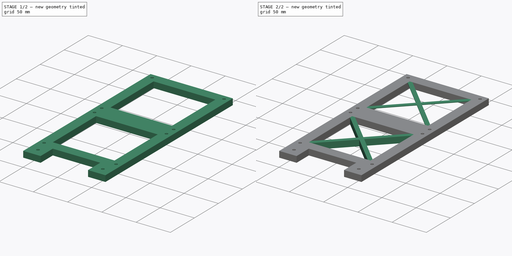
[diagram: build sequence overview — one tinted view per stage of 2, left to right]
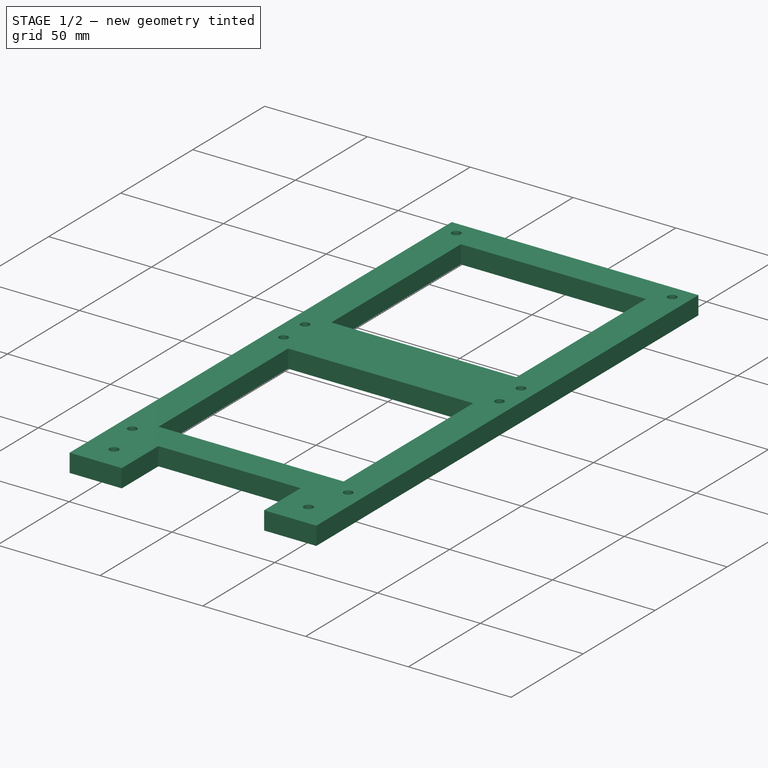
[diagram: stage 1 of 2 — iso view after this stage's code; geometry added in this stage tinted green]
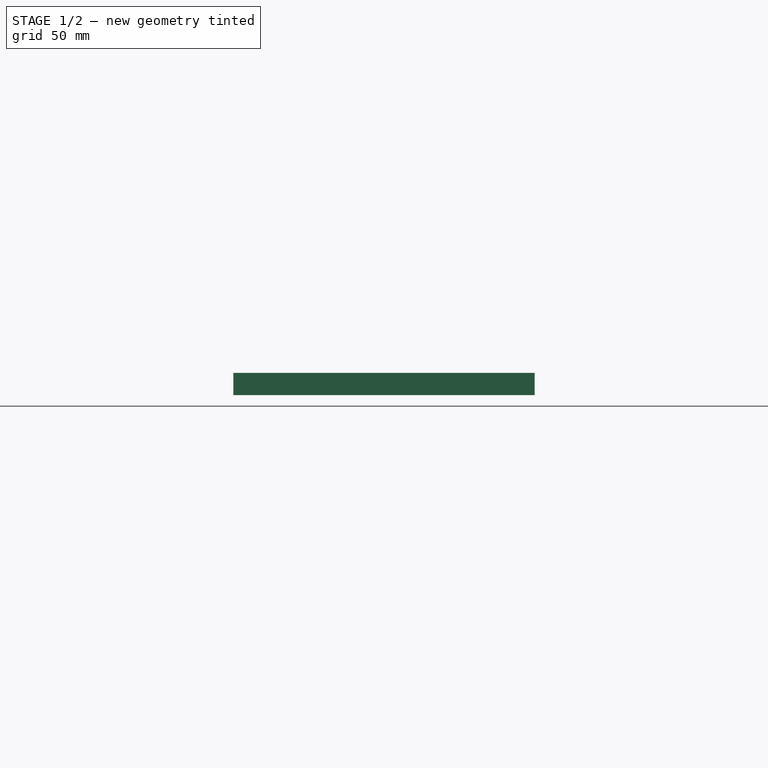
[diagram: stage 1 of 2 — front view after this stage's code; geometry added in this stage tinted green]
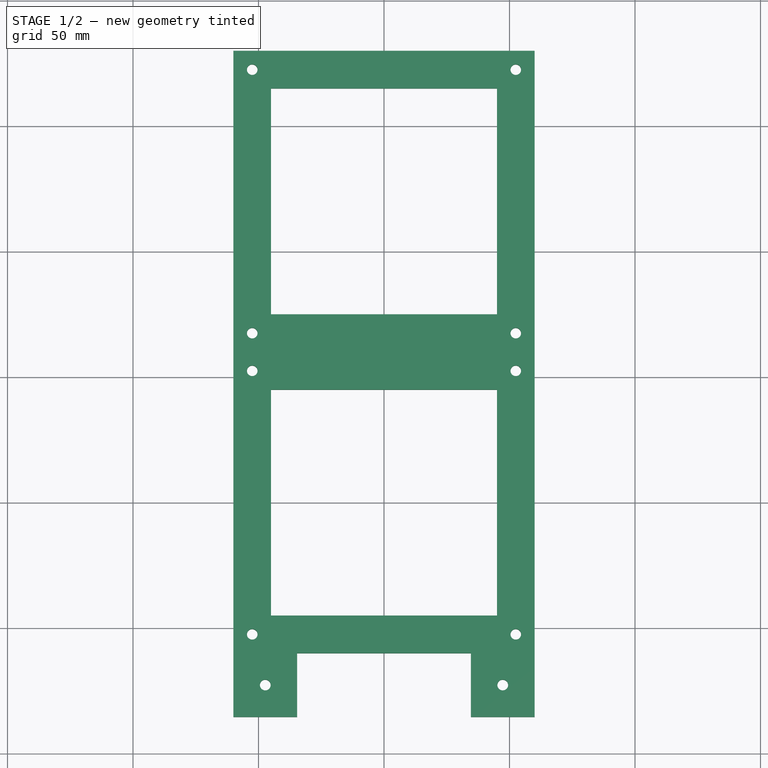
[diagram: stage 1 of 2 — top view after this stage's code; geometry added in this stage tinted green]
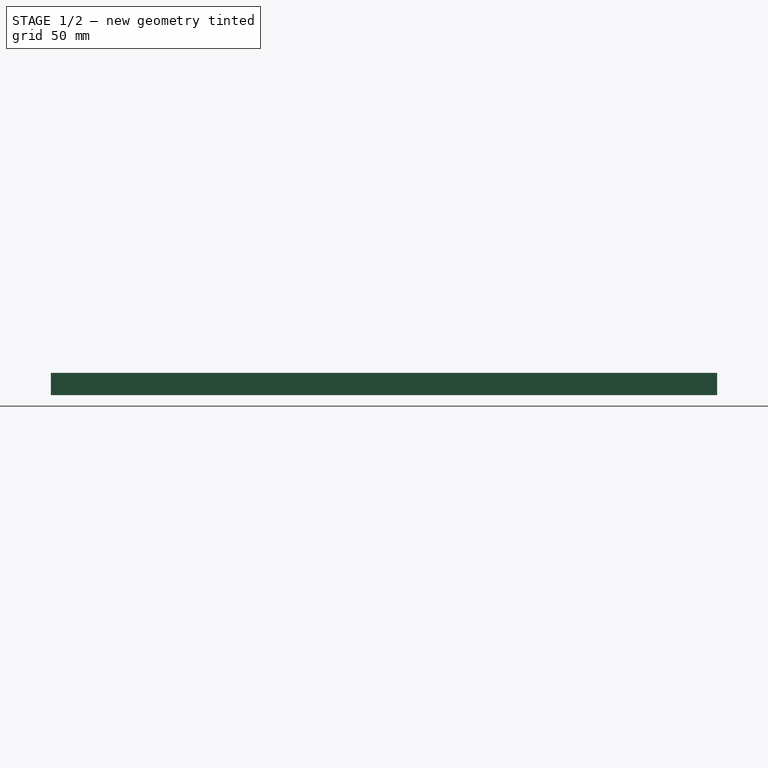
[diagram: stage 1 of 2 — right view after this stage's code; geometry added in this stage tinted green]
FCSTD DOCUMENT  (FreeCAD 0.20R29603 (Git))
Label: Double_Fan_Bracket
License: All rights reserved
LicenseURL: http://en.wikipedia.org/wiki/All_rights_reserved
objects: Sketcher::SketchObject×4, PartDesign::Pad×4, PartDesign::Body×1
note: 13 computed .brp shape members not serialized (recipe doc carries the construction recipe); baked Part::Feature solids carry a one-line shape summary decoded from their .brp

FEATURE [Sketcher::SketchObject] Sketch  label="outer_bracket"
  FullyConstrained = false
  MapMode = 5
  Support = -> [XY_Plane]
  sketch-geometry (36):
    g0: LineSegment StartX=-52.5 StartY=52.5 StartZ=0 EndX=52.5 EndY=52.5 EndZ=0
    g1: LineSegment StartX=52.5 StartY=52.5 StartZ=0 EndX=52.5 EndY=-52.5 EndZ=0
    g2: LineSegment StartX=52.5 StartY=-52.5 StartZ=0 EndX=-52.5 EndY=-52.5 EndZ=0
    g3: LineSegment StartX=-52.5 StartY=-52.5 StartZ=0 EndX=-52.5 EndY=52.5 EndZ=0
    g4: LineSegment StartX=60 StartY=60 StartZ=0 EndX=60 EndY=-60 EndZ=0
    g5: LineSegment StartX=60 StartY=-60 StartZ=0 EndX=-60 EndY=-60 EndZ=0
    g6: LineSegment StartX=-60 StartY=-60 StartZ=0 EndX=-60 EndY=60 EndZ=0
    g7: LineSegment StartX=-45 StartY=45 StartZ=0 EndX=45 EndY=45 EndZ=0
    g8: LineSegment StartX=45 StartY=45 StartZ=0 EndX=45 EndY=-45 EndZ=0
    g9: LineSegment StartX=45 StartY=-45 StartZ=0 EndX=-45 EndY=-45 EndZ=0
    g10: LineSegment StartX=-45 StartY=-45 StartZ=0 EndX=-45 EndY=45 EndZ=0
    g11: LineSegment StartX=-52.5 StartY=52.5 StartZ=0 EndX=-60 EndY=60 EndZ=0
    g12: LineSegment StartX=-52.5 StartY=52.5 StartZ=0 EndX=-45 EndY=45 EndZ=0
    g13: Circle CenterX=-52.5 CenterY=52.5 CenterZ=0 NormalX=0 NormalY=0 NormalZ=1 AngleXU=0 Radius=2.1082
    g14: Circle CenterX=52.5 CenterY=52.5 CenterZ=0 NormalX=0 NormalY=0 NormalZ=1 AngleXU=0 Radius=2.1082
    g15: Circle CenterX=-52.5 CenterY=-52.5 CenterZ=0 NormalX=0 NormalY=0 NormalZ=1 AngleXU=0 Radius=2.1082
    g16: Circle CenterX=52.5 CenterY=-52.5 CenterZ=0 NormalX=0 NormalY=0 NormalZ=1 AngleXU=0 Radius=2.1082
    g17: LineSegment StartX=45 StartY=45 StartZ=0 EndX=52.5 EndY=52.5 EndZ=0
    g18: LineSegment StartX=-60 StartY=60 StartZ=0 EndX=60 EndY=60 EndZ=0
    g19: LineSegment StartX=60 StartY=60 StartZ=0 EndX=60 EndY=180 EndZ=0
    g20: LineSegment StartX=60 StartY=180 StartZ=0 EndX=-60 EndY=180 EndZ=0
    g21: LineSegment StartX=-60 StartY=180 StartZ=0 EndX=-60 EndY=60 EndZ=0
    g22: LineSegment StartX=-52.5 StartY=172.5 StartZ=0 EndX=52.5 EndY=172.5 EndZ=0
    g23: LineSegment StartX=52.5 StartY=172.5 StartZ=0 EndX=52.5 EndY=67.5 EndZ=0
    g24: LineSegment StartX=52.5 StartY=67.5 StartZ=0 EndX=-52.5 EndY=67.5 EndZ=0
    g25: LineSegment StartX=-52.5 StartY=67.5 StartZ=0 EndX=-52.5 EndY=172.5 EndZ=0
    g26: LineSegment StartX=-45 StartY=165 StartZ=0 EndX=45 EndY=165 EndZ=0
    g27: LineSegment StartX=45 StartY=165 StartZ=0 EndX=45 EndY=75 EndZ=0
    g28: LineSegment StartX=45 StartY=75 StartZ=0 EndX=-45 EndY=75 EndZ=0
    g29: LineSegment StartX=-45 StartY=75 StartZ=0 EndX=-45 EndY=165 EndZ=0
    g30: LineSegment StartX=-52.5 StartY=172.5 StartZ=0 EndX=-60 EndY=180 EndZ=0
    g31: LineSegment StartX=-45 StartY=165 StartZ=0 EndX=-52.5 EndY=172.5 EndZ=0
    g32: Circle CenterX=-52.5 CenterY=172.5 CenterZ=0 NormalX=0 NormalY=0 NormalZ=1 AngleXU=0 Radius=2.1082
    g33: Circle CenterX=52.5 CenterY=172.5 CenterZ=0 NormalX=0 NormalY=0 NormalZ=1 AngleXU=0 Radius=2.1082
    g34: Circle CenterX=52.5 CenterY=67.5 CenterZ=0 NormalX=0 NormalY=0 NormalZ=1 AngleXU=0 Radius=2.1082
    g35: Circle CenterX=-52.5 CenterY=67.5 CenterZ=0 NormalX=0 NormalY=0 NormalZ=1 AngleXU=0 Radius=2.1082
  constraints (91):
    c: Coincident(g0,g1)
    c: Coincident(g1,g2)
    c: Coincident(g2,g3)
    c: Coincident(g3,g0)
    c: Horizontal(g0)
    c: Horizontal(g2)
    c: Vertical(g1)
    c: Vertical(g3)
    c: Symmetric(g2,g0,g-1)
    c: Coincident(g4,g5)
    c: Coincident(g5,g6)
    c: Horizontal(g5)
    c: Vertical(g4)
    c: Vertical(g6)
    c: Symmetric(g5,g4,g-1)
    c: Equal(g0,g3)
    c: DistanceX(g0,g0) = 105
    c: DistanceX(g6,g4) = 120
    c: Coincident(g7,g8)
    c: Coincident(g8,g9)
    c: Coincident(g9,g10)
    c: Coincident(g10,g7)
    c: Horizontal(g7)
    c: Horizontal(g9)
    c: Vertical(g8)
    c: Vertical(g10)
    c: Coincident(g11,g0)
    c: Coincident(g12,g11)
    c: Coincident(g12,g7)
    c: Equal(g12,g11)
    c: Angle(g12,g0) = 0.785398
    c: Coincident(g13,g0)
    c: Coincident(g14,g0)
    c: Coincident(g15,g2)
    c: Coincident(g16,g1)
    c: Diameter(g16) = 4.2164
    c: Equal(g14,g13)
    c: Equal(g13,g15)
    c: Equal(g15,g16)
    c: Equal(g7,g10)
    c: Coincident(g17,g7)
    c: Coincident(g17,g14)
    c: Equal(g17,g12)
    c: Coincident(g18,g19)
    c: Coincident(g19,g20)
    c: Coincident(g20,g21)
    c: Coincident(g21,g18)
    c: Horizontal(g18)
    c: Horizontal(g20)
    c: Vertical(g19)
    c: Vertical(g21)
    c: Coincident(g22,g23)
    c: Coincident(g23,g24)
    c: Coincident(g24,g25)
    c: Coincident(g25,g22)
    c: Horizontal(g24)
    c: Vertical(g23)
    c: Vertical(g25)
    c: Coincident(g26,g27)
    c: Coincident(g27,g28)
    c: Coincident(g28,g29)
    c: Coincident(g29,g26)
    c: Horizontal(g28)
    c: Vertical(g27)
    c: Vertical(g29)
    c: Equal(g21,g20)
    c: Equal(g22,g25)
    c: Equal(g26,g29)
    c: Coincident(g30,g22)
    c: Coincident(g30,g20)
    c: Coincident(g31,g26)
    c: Coincident(g31,g22)
    c: Angle(g31,g22) = 0.785398
    c: Equal(g31,g30)
    c: Equal(g4,g19)
    c: Equal(g23,g1)
    c: Equal(g8,g27)
    c: Symmetric(g26,g26,g-2)
    c: Symmetric(g22,g22,g-2)
    c: Coincident(g32,g22)
    c: Coincident(g33,g22)
    c: Coincident(g34,g23)
    c: Coincident(g35,g24)
    c: Equal(g21,g6)
    c: Equal(g5,g6)
    c: Equal(g34,g35)
    c: Equal(g35,g33)
    c: Equal(g33,g32)
    c: Equal(g33,g14)
    c: Angle(g30,g20) = 0.785398
    c: Block(g18)
FEATURE [PartDesign::Pad] Pad  label="Outside_Bracket"
  Direction = (0,0,1)
  Length = 8.89
  Length2 = 10
  Profile = -> Sketch
  ReferenceAxis = -> Sketch [N_Axis]
  Type = 0
FEATURE [Sketcher::SketchObject] Sketch001  label="m5_holes"
  ExternalGeometry = -> [Pad]
  FullyConstrained = true
  MapMode = 5
  Placement = pos=(0,0,8.89) rot=(0,0,1;0rad)
  Support = -> [Pad]
  sketch-geometry (10):
    g0: Circle CenterX=-47.3 CenterY=-72.7 CenterZ=0 NormalX=0 NormalY=0 NormalZ=1 AngleXU=0 Radius=2.1463
    g1: Circle CenterX=47.3 CenterY=-72.7 CenterZ=0 NormalX=0 NormalY=0 NormalZ=1 AngleXU=0 Radius=2.1463
    g2: LineSegment StartX=-60 StartY=-60 StartZ=0 EndX=-34.6 EndY=-60 EndZ=0
    g3: LineSegment StartX=-34.6 StartY=-60 StartZ=0 EndX=-34.6 EndY=-85.4 EndZ=0
    g4: LineSegment StartX=-34.6 StartY=-85.4 StartZ=0 EndX=-60 EndY=-85.4 EndZ=0
    g5: LineSegment StartX=-60 StartY=-85.4 StartZ=0 EndX=-60 EndY=-60 EndZ=0
    g6: LineSegment StartX=34.6 StartY=-60 StartZ=0 EndX=60 EndY=-60 EndZ=0
    g7: LineSegment StartX=60 StartY=-60 StartZ=0 EndX=60 EndY=-85.4 EndZ=0
    g8: LineSegment StartX=60 StartY=-85.4 StartZ=0 EndX=34.6 EndY=-85.4 EndZ=0
    g9: LineSegment StartX=34.6 StartY=-85.4 StartZ=0 EndX=34.6 EndY=-60 EndZ=0
  constraints (26):
    c: Equal(g0,g1)
    c: Diameter(g0) = 4.2926
    c: Coincident(g2,g3)
    c: Coincident(g3,g4)
    c: Coincident(g4,g5)
    c: Horizontal(g2)
    c: Horizontal(g4)
    c: Vertical(g3)
    c: Vertical(g5)
    c: Coincident(g6,g7)
    c: Coincident(g7,g8)
    c: Coincident(g8,g9)
    c: Horizontal(g6)
    c: Horizontal(g8)
    c: Vertical(g7)
    c: Vertical(g9)
    c: Equal(g4,g8)
    c: Equal(g5,g4)
    c: Equal(g7,g8)
    c: DistanceX(g4,g4) = 25.4
    c: Coincident(g5,g2)
    c: Coincident(g6,g9)
    c: Coincident(g2,g-4)
    c: Coincident(g6,g-5)
    c: Symmetric(g0,g1,g-2)
    c: Symmetric(g4,g2,g0)
FEATURE [PartDesign::Pad] Pad001  label="M5_holes_attach"
  BaseFeature = -> Pad
  Direction = (0,0,1)
  Length = 8.89
  Length2 = 10
  Profile = -> Sketch001
  ReferenceAxis = -> Sketch001 [N_Axis]
  Reversed = true
  Type = 0
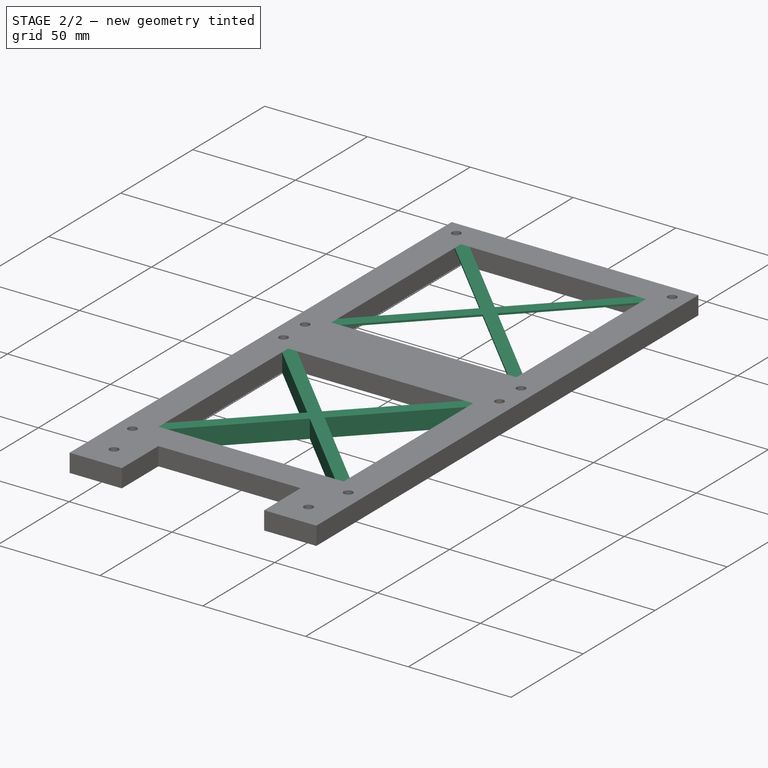
[diagram: stage 2 of 2 — iso view after this stage's code; geometry added in this stage tinted green]
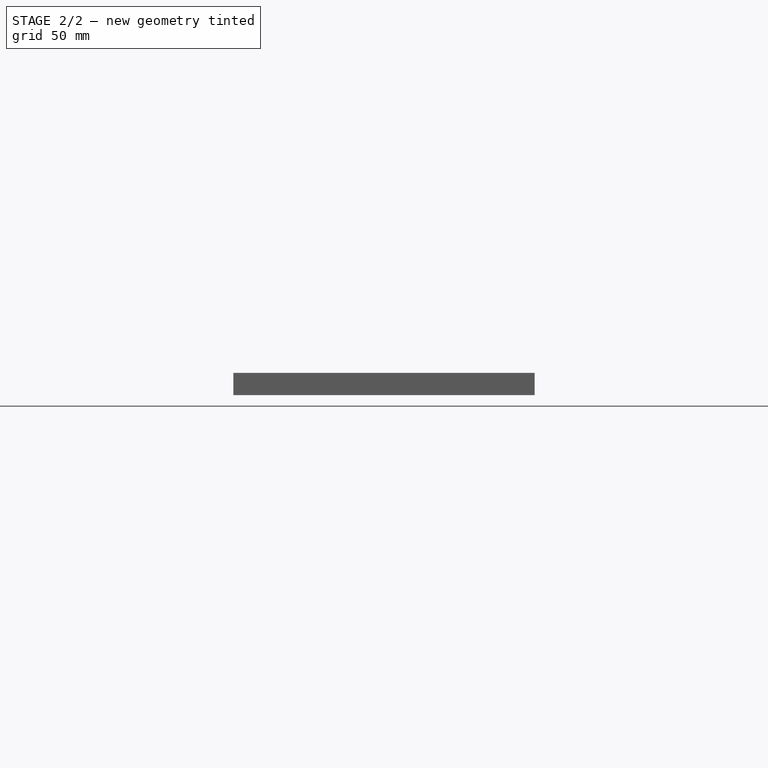
[diagram: stage 2 of 2 — front view after this stage's code; geometry added in this stage tinted green]
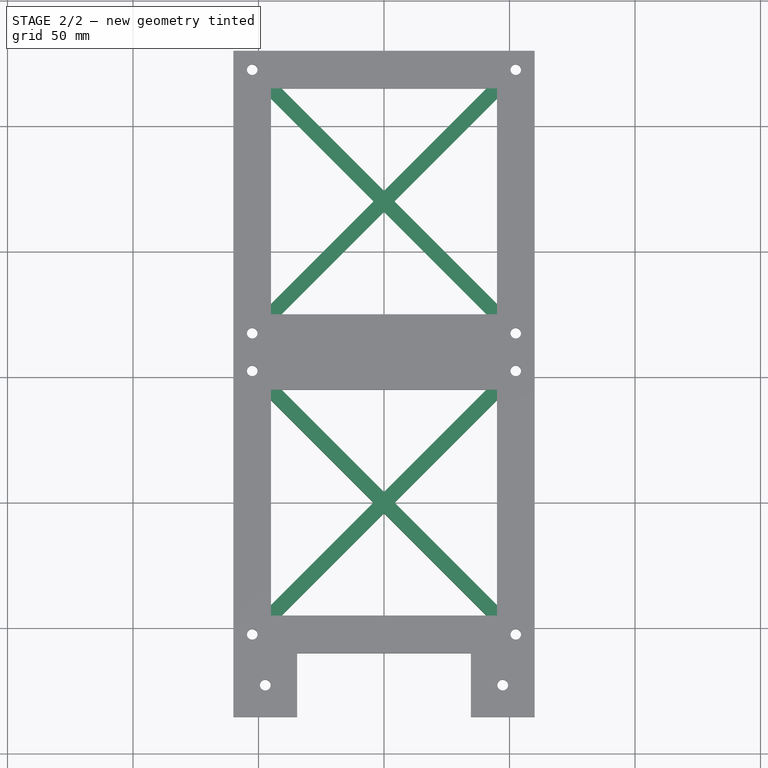
[diagram: stage 2 of 2 — top view after this stage's code; geometry added in this stage tinted green]
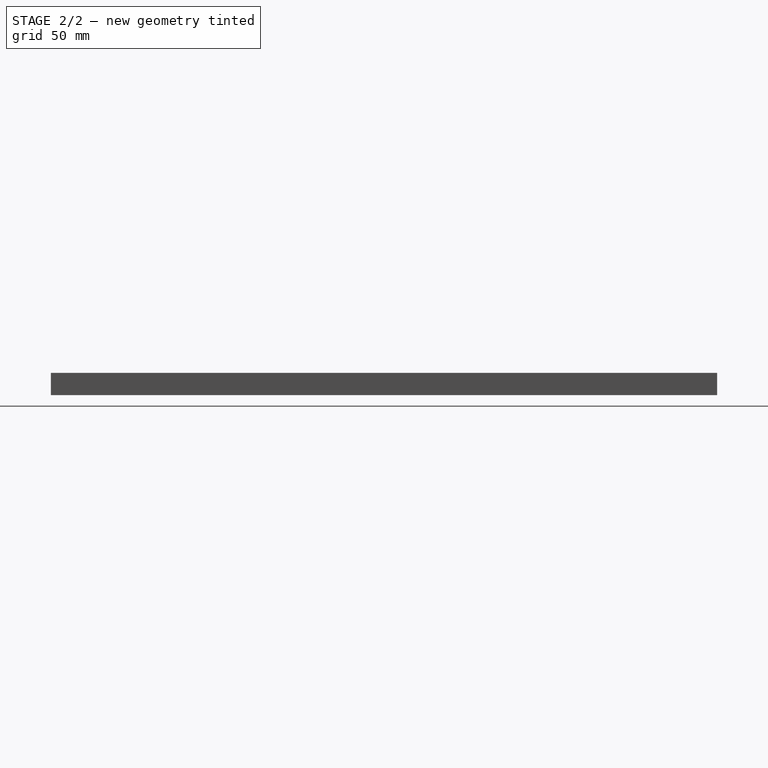
[diagram: stage 2 of 2 — right view after this stage's code; geometry added in this stage tinted green]
FEATURE [Sketcher::SketchObject] Sketch002  label="cross_support"
  ExternalGeometry = -> [Pad001]
  FullyConstrained = true
  MapMode = 5
  Placement = pos=(0,0,8.89) rot=(0,0,1;0rad)
  Support = -> [Pad001]
  sketch-geometry (18):
    g0: LineSegment StartX=-45 StartY=-40.7836 StartZ=0 EndX=-4.2164 EndY=0 EndZ=0
    g1: LineSegment StartX=-40.7836 StartY=-45 StartZ=0 EndX=0 EndY=-4.2164 EndZ=0
    g2: LineSegment StartX=40.7836 StartY=-45 StartZ=0 EndX=0 EndY=-4.2164 EndZ=0
    g3: LineSegment StartX=45 StartY=-40.7836 StartZ=0 EndX=4.2164 EndY=0 EndZ=0
    g4: LineSegment StartX=4.2164 StartY=0 StartZ=0 EndX=45 EndY=40.7836 EndZ=0
    g5: LineSegment StartX=40.7836 StartY=45 StartZ=0 EndX=0 EndY=4.2164 EndZ=0
    g6: LineSegment StartX=0 StartY=4.2164 StartZ=0 EndX=-40.7836 EndY=45 EndZ=0
    g7: LineSegment StartX=-45 StartY=40.7836 StartZ=0 EndX=-4.2164 EndY=0 EndZ=0
    g8: LineSegment StartX=-4.2164 StartY=0 StartZ=0 EndX=4.2164 EndY=0 EndZ=0
    g9: LineSegment StartX=0 StartY=4.2164 StartZ=0 EndX=0 EndY=-4.2164 EndZ=0
    g10: LineSegment StartX=-45 StartY=-45 StartZ=0 EndX=-45 EndY=-40.7836 EndZ=0
    g11: LineSegment StartX=-45 StartY=-45 StartZ=0 EndX=-40.7836 EndY=-45 EndZ=0
    g12: LineSegment StartX=45 StartY=-45 StartZ=0 EndX=45 EndY=-40.7836 EndZ=0
    g13: LineSegment StartX=45 StartY=-45 StartZ=0 EndX=40.7836 EndY=-45 EndZ=0
    g14: LineSegment StartX=45 StartY=45 StartZ=0 EndX=45 EndY=40.7836 EndZ=0
    g15: LineSegment StartX=45 StartY=45 StartZ=0 EndX=40.7836 EndY=45 EndZ=0
    g16: LineSegment StartX=-45 StartY=45 StartZ=0 EndX=-40.7836 EndY=45 EndZ=0
    g17: LineSegment StartX=-45 StartY=45 StartZ=0 EndX=-45 EndY=40.7836 EndZ=0
  constraints (47):
    c: Equal(g6,g7)
    c: Equal(g4,g5)
    c: Equal(g0,g1)
    c: Equal(g2,g3)
    c: Angle(g5,g6) = 1.5708
    c: Coincident(g2,g1)
    c: Coincident(g1,g9)
    c: Vertical(g9)
    c: Horizontal(g8)
    c: Coincident(g7,g0)
    c: Coincident(g0,g8)
    c: Coincident(g6,g5)
    c: Coincident(g9,g5)
    c: Coincident(g4,g3)
    c: Coincident(g3,g8)
    c: Equal(g9,g8)
    c: Symmetric(g0,g3,g-1)
    c: Symmetric(g5,g1,g-1)
    c: Coincident(g10,g-8)
    c: PointOnObject(g10,g-8)
    c: Coincident(g11,g10)
    c: PointOnObject(g11,g-7)
    c: Coincident(g12,g-10)
    c: PointOnObject(g12,g-10)
    c: Coincident(g13,g12)
    c: PointOnObject(g13,g-7)
    c: Coincident(g14,g-10)
    c: PointOnObject(g14,g-10)
    c: Coincident(g15,g14)
    c: PointOnObject(g15,g-9)
    c: Coincident(g16,g-9)
    c: PointOnObject(g16,g-9)
    c: Coincident(g17,g16)
    c: PointOnObject(g17,g-8)
    c: Equal(g14,g16)
    c: Equal(g17,g11)
    c: Equal(g10,g12)
    c: Coincident(g0,g10)
    c: Coincident(g1,g11)
    c: Coincident(g2,g13)
    c: Coincident(g3,g12)
    c: Coincident(g4,g14)
    c: Coincident(g15,g5)
    c: Coincident(g6,g16)
    c: Coincident(g7,g17)
    c: Diameter(g-11) = 4.2164
    c: DistanceX(g16,g16) = 4.2164
FEATURE [Sketcher::SketchObject] Sketch003  label="Cross_Support_top"
  ExternalGeometry = -> [Pad001,Sketch002]
  FullyConstrained = true
  MapMode = 5
  Placement = pos=(0,0,8.89) rot=(0,0,1;0rad)
  Support = -> [Pad001]
  sketch-geometry (19):
    g0: LineSegment StartX=-45 StartY=75 StartZ=0 EndX=-45 EndY=79.2164 EndZ=0
    g1: LineSegment StartX=-45 StartY=75 StartZ=0 EndX=-40.7836 EndY=75 EndZ=0
    g2: LineSegment StartX=45 StartY=75 StartZ=0 EndX=45 EndY=79.2164 EndZ=0
    g3: LineSegment StartX=45 StartY=75 StartZ=0 EndX=40.7836 EndY=75 EndZ=0
    g4: LineSegment StartX=45 StartY=165 StartZ=0 EndX=45 EndY=160.784 EndZ=0
    g5: LineSegment StartX=45 StartY=165 StartZ=0 EndX=40.7836 EndY=165 EndZ=0
    g6: LineSegment StartX=-45 StartY=165 StartZ=0 EndX=-40.7836 EndY=165 EndZ=0
    g7: LineSegment StartX=-45 StartY=165 StartZ=0 EndX=-45 EndY=160.784 EndZ=0
    g8: LineSegment StartX=0 StartY=124.216 StartZ=0 EndX=-8e-16 EndY=115.784 EndZ=0
    g9: LineSegment StartX=-4.2164 StartY=120 StartZ=0 EndX=4.2164 EndY=120 EndZ=0
    g10: GeomPoint X=-4e-16 Y=120 Z=0
    g11: LineSegment StartX=-40.7836 StartY=75 StartZ=0 EndX=0 EndY=115.784 EndZ=0
    g12: LineSegment StartX=-8e-16 StartY=115.784 StartZ=0 EndX=40.7836 EndY=75 EndZ=0
    g13: LineSegment StartX=45 StartY=79.2164 StartZ=0 EndX=4.2164 EndY=120 EndZ=0
    g14: LineSegment StartX=-45 StartY=79.2164 StartZ=0 EndX=-4.2164 EndY=120 EndZ=0
    g15: LineSegment StartX=-4.2164 StartY=120 StartZ=0 EndX=-45 EndY=160.784 EndZ=0
    g16: LineSegment StartX=-40.7836 StartY=165 StartZ=0 EndX=0 EndY=124.216 EndZ=0
    g17: LineSegment StartX=0 StartY=124.216 StartZ=0 EndX=40.7836 EndY=165 EndZ=0
    g18: LineSegment StartX=45 StartY=160.784 StartZ=0 EndX=4.2164 EndY=120 EndZ=0
  constraints (48):
    c: Coincident(g0,g-6)
    c: PointOnObject(g0,g-3)
    c: Coincident(g1,g0)
    c: PointOnObject(g1,g-6)
    c: Coincident(g2,g-7)
    c: PointOnObject(g2,g-7)
    c: PointOnObject(g3,g-6)
    c: Horizontal(g3)
    c: Coincident(g4,g-7)
    c: PointOnObject(g4,g-7)
    c: Coincident(g5,g4)
    c: PointOnObject(g5,g-5)
    c: Coincident(g6,g-5)
    c: PointOnObject(g6,g-5)
    c: Coincident(g7,g6)
    c: PointOnObject(g7,g-3)
    c: Equal(g0,g1)
    c: Equal(g1,g2)
    c: Equal(g2,g3)
    c: Equal(g3,g4)
    c: Equal(g4,g5)
    c: Equal(g5,g6)
    c: Equal(g6,g7)
    c: PointOnObject(g8,g-2)
    c: Horizontal(g9)
    c: Equal(g8,g9)
    c: Symmetric(g8,g8,g10)
    c: Symmetric(g9,g9,g10)
    c: Symmetric(g0,g4,g10)
    c: Coincident(g11,g1)
    c: Coincident(g11,g8)
    c: Coincident(g12,g11)
    c: Coincident(g12,g3)
    c: Coincident(g13,g2)
    c: Coincident(g13,g9)
    c: Coincident(g14,g0)
    c: Coincident(g14,g9)
    c: Coincident(g15,g14)
    c: Coincident(g15,g7)
    c: Coincident(g16,g6)
    c: Coincident(g16,g8)
    c: Coincident(g17,g16)
    c: Coincident(g17,g5)
    c: Coincident(g18,g4)
    c: Coincident(g18,g13)
    c: Parallel(g12,g13)
    c: Parallel(g15,g16)
    c: Equal(g6,g-4)
FEATURE [PartDesign::Pad] Pad002  label="Cross_Support_Bottom"
  BaseFeature = -> Pad001
  Direction = (0,0,1)
  Length = 8.89
  Length2 = 9.906
  Profile = -> Sketch002
  ReferenceAxis = -> Sketch002 [N_Axis]
  Reversed = true
  Type = 0
FEATURE [PartDesign::Pad] Pad003  label="Cross_Skupport_Top"
  BaseFeature = -> Pad002
  Direction = (0,0,1)
  Length = 0.889
  Length2 = 10
  Profile = -> Sketch003
  ReferenceAxis = -> Sketch003 [N_Axis]
  Reversed = true
  Type = 0
FEATURE [PartDesign::Body] Body  label="Double_Fan_Bracket"
  Group = -> [Sketch,Pad,Sketch001,Pad001,Sketch002,Sketch003,Pad002,Pad003]
  Origin = -> Origin
  Tip = -> Pad003
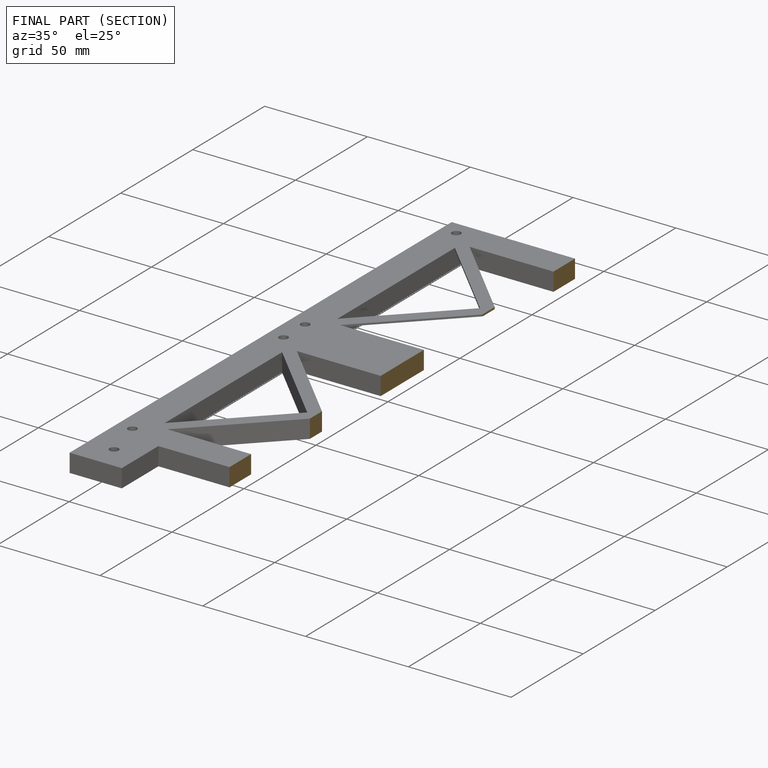
[diagram: finished part — half-section view (interior)]
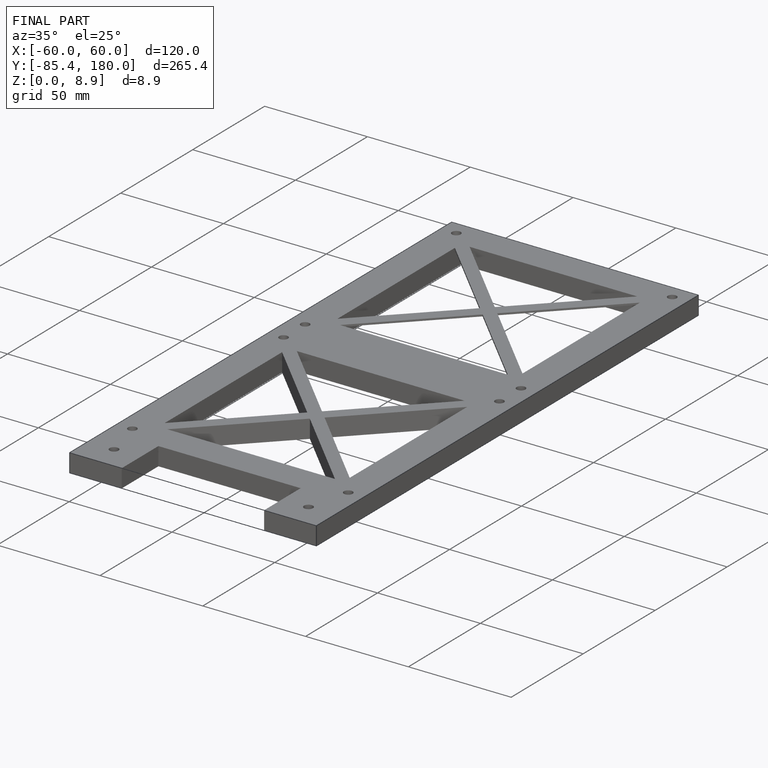
[diagram: finished part — iso view with bounding-box wireframe]
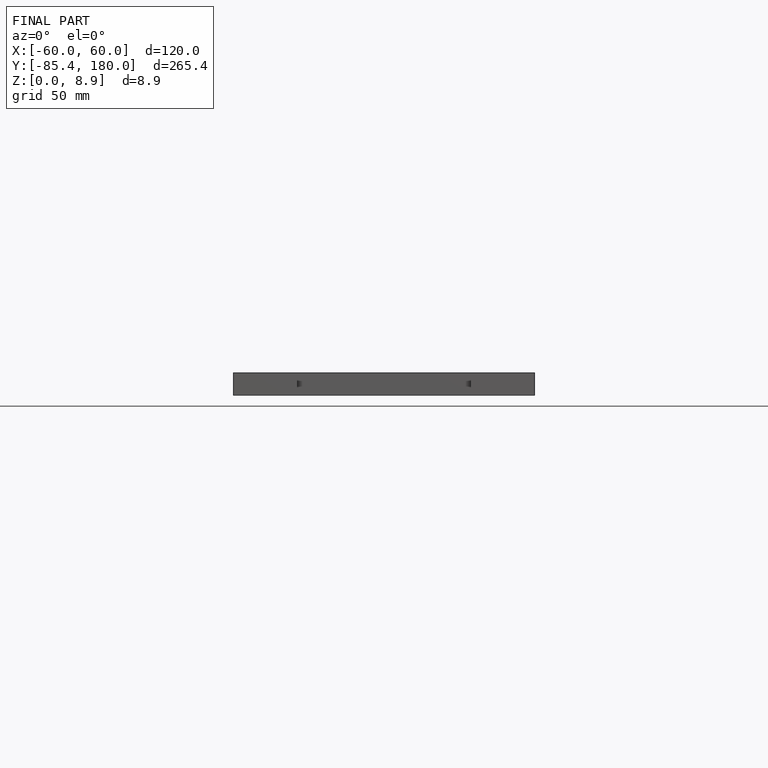
[diagram: finished part — front view with bounding-box wireframe]
